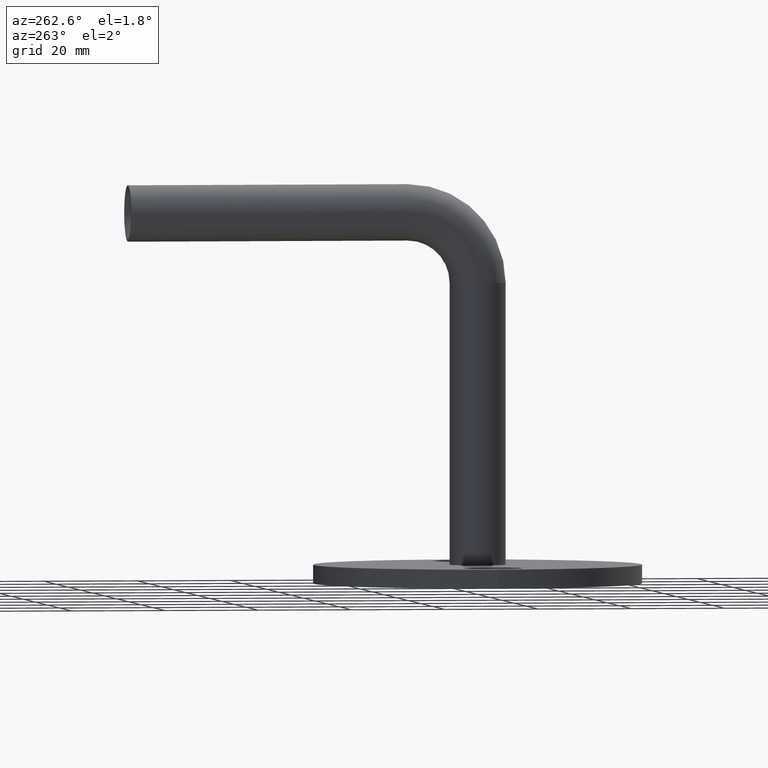
[diagram: clean part render]
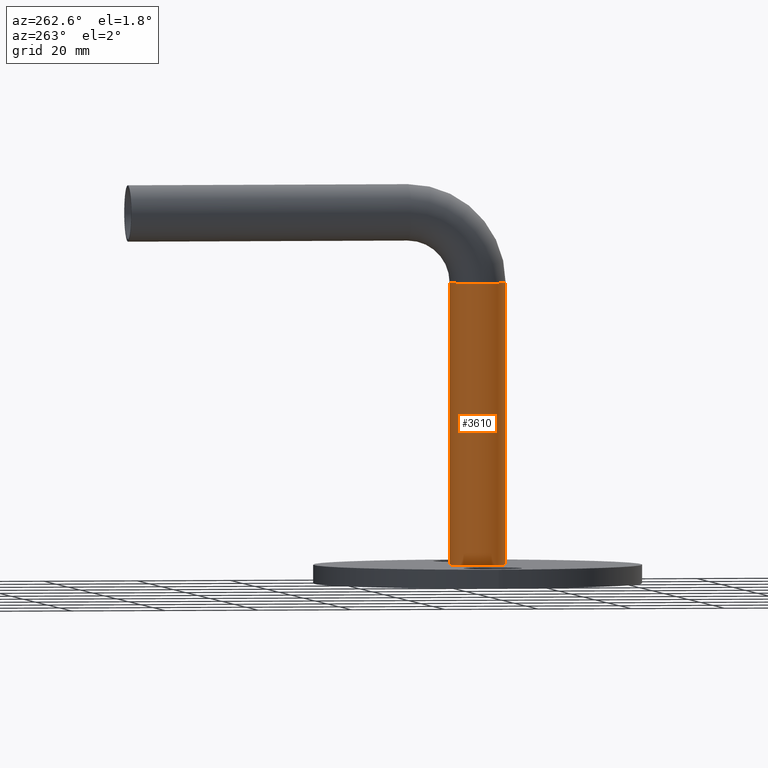
[diagram: same view with one face highlighted and labeled with its STEP entity id]
A machine part, auxiliary view. The second image highlights one B-rep face of the part: STEP entity #3610.
In plain terms, the highlighted cylindrical surface (edge-blend (fillet) strip) has radius 6 mm, axis along (0, 0, -1).
Its self-contained STEP definition (entity closure, byte-faithful):
#1713 = LINE ( 'NONE', #14107, #11895 ) ;
#2441 = CARTESIAN_POINT ( 'NONE',  ( 0.000000000000000000, 5.999999999999993783, 60.00000000000000000 ) ) ;
#2602 = AXIS2_PLACEMENT_3D ( 'NONE', #10206, #16101, #9012 ) ;
#3143 = DIRECTION ( 'NONE',  ( 0.000000000000000000, 1.000000000000000000, 0.000000000000000000 ) ) ;
#3348 = EDGE_CURVE ( 'NONE', #8886, #8580, #6602, .T. ) ;
#3610 = ADVANCED_FACE ( 'NONE', ( #15703 ), #11483, .T. ) ;
#3842 = DIRECTION ( 'NONE',  ( 1.000000000000000000, 0.000000000000000000, 0.000000000000000000 ) ) ;
#4340 = VERTEX_POINT ( 'NONE', #10193 ) ;
#4795 = ORIENTED_EDGE ( 'NONE', *, *, #3348, .T. ) ;
#5536 = CARTESIAN_POINT ( 'NONE',  ( 0.000000000000000000, 5.999999999999993783, 60.00000000000000000 ) ) ;
#6081 = CIRCLE ( 'NONE', #2602, 6.000000000000000888 ) ;
#6602 = LINE ( 'NONE', #2441, #9254 ) ;
#7929 = CARTESIAN_POINT ( 'NONE',  ( 0.000000000000000000, 0.000000000000000000, 0.000000000000000000 ) ) ;
#8131 = CARTESIAN_POINT ( 'NONE',  ( 7.347880794884124666E-16, -6.000000000000008882, 60.00000000000000000 ) ) ;
#8580 = VERTEX_POINT ( 'NONE', #13470 ) ;
#8886 = VERTEX_POINT ( 'NONE', #5536 ) ;
#8940 = EDGE_CURVE ( 'NONE', #11234, #4340, #1713, .T. ) ;
#8943 = ORIENTED_EDGE ( 'NONE', *, *, #8940, .F. ) ;
#9012 = DIRECTION ( 'NONE',  ( 1.000000000000000000, 0.000000000000000000, 0.000000000000000000 ) ) ;
#9254 = VECTOR ( 'NONE', #9364, 1000.000000000000000 ) ;
#9364 = DIRECTION ( 'NONE',  ( -0.000000000000000000, 1.156482317317871478E-16, -1.000000000000000000 ) ) ;
#10193 = CARTESIAN_POINT ( 'NONE',  ( 7.347880794884120722E-16, -6.000000000000000888, 0.000000000000000000 ) ) ;
#10206 = CARTESIAN_POINT ( 'NONE',  ( 0.000000000000000000, -6.938893903907228378E-15, 60.00000000000000000 ) ) ;
#11234 = VERTEX_POINT ( 'NONE', #8131 ) ;
#11483 = CYLINDRICAL_SURFACE ( 'NONE', #17656, 6.000000000000000888 ) ;
#11553 = EDGE_CURVE ( 'NONE', #8580, #4340, #13737, .T. ) ;
#11756 = DIRECTION ( 'NONE',  ( -0.000000000000000000, 1.156482317317871478E-16, -1.000000000000000000 ) ) ;
#11895 = VECTOR ( 'NONE', #12909, 1000.000000000000000 ) ;
#12345 = DIRECTION ( 'NONE',  ( 0.000000000000000000, 0.000000000000000000, 1.000000000000000000 ) ) ;
#12909 = DIRECTION ( 'NONE',  ( -0.000000000000000000, 1.156482317317871478E-16, -1.000000000000000000 ) ) ;
#13111 = ORIENTED_EDGE ( 'NONE', *, *, #11553, .T. ) ;
#13264 = CARTESIAN_POINT ( 'NONE',  ( 0.000000000000000000, -6.938893903907228378E-15, 60.00000000000000000 ) ) ;
#13470 = CARTESIAN_POINT ( 'NONE',  ( 0.000000000000000000, 6.000000000000001776, 0.000000000000000000 ) ) ;
#13576 = AXIS2_PLACEMENT_3D ( 'NONE', #7929, #12345, #3842 ) ;
#13737 = CIRCLE ( 'NONE', #13576, 6.000000000000000888 ) ;
#14107 = CARTESIAN_POINT ( 'NONE',  ( 7.347880794884120722E-16, -6.000000000000007994, 60.00000000000000000 ) ) ;
#15703 = FACE_OUTER_BOUND ( 'NONE', #17827, .T. ) ;
#16101 = DIRECTION ( 'NONE',  ( 0.000000000000000000, 0.000000000000000000, 1.000000000000000000 ) ) ;
#17656 = AXIS2_PLACEMENT_3D ( 'NONE', #13264, #11756, #3143 ) ;
#17743 = ORIENTED_EDGE ( 'NONE', *, *, #17981, .F. ) ;
#17827 = EDGE_LOOP ( 'NONE', ( #8943, #17743, #4795, #13111 ) ) ;
#17981 = EDGE_CURVE ( 'NONE', #8886, #11234, #6081, .T. ) ;